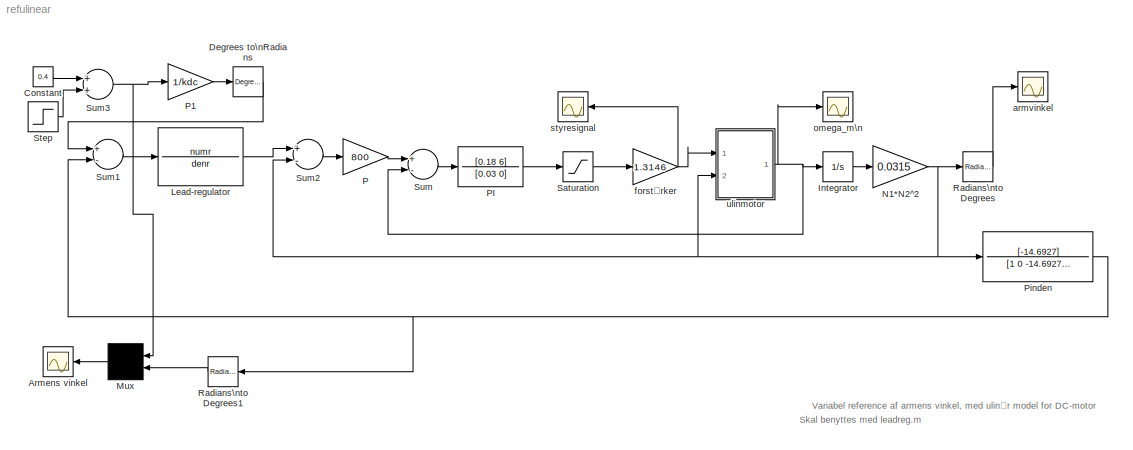
MODEL refulinear
KIND model
CONFIG AbsTol = 1e-6
CONFIG FixedStep = auto
CONFIG MaxStep = auto
CONFIG RelTol = 1e-3
CONFIG Solver = ode45
CONFIG StartTime = 0.0
CONFIG StopTime = 10
BLOCK [Scope] Armens vinkel
  Decimation = 1
  Floating = off
  Grid = on
  LimitMaxRows = on
  MaxRows = 5000
  Ports = [1, 0, 0, 0, 0]
  SampleInput = off
  SampleTime = 0
  SaveName = ScopeData
  SaveToWorkspace = off
  TickLabels = on
  TimeRange = 5
  YMax = 1
  YMin = -1
  ZoomMode = on
BLOCK [Constant] Constant
  Value = 0.4
BLOCK [Reference] Degrees to\nRadians  REF=simulink_extras/Transformations/Degrees to\nRadians
  Ports = [1, 1, 0, 0, 0]
  SourceBlock = simulink_extras/Transformations/Degrees to\nRadians
  SourceType = DegreesToRadians
BLOCK [Integrator] Integrator
  AbsoluteTolerance = auto
  ExternalReset = none
  InitialCondition = 0
  InitialConditionSource = internal
  LimitOutput = off
  LowerSaturationLimit = -inf
  Ports = [1, 1, 0, 0, 0]
  ShowSaturationPort = off
  ShowStatePort = off
  UpperSaturationLimit = inf
BLOCK [TransferFcn] Lead-regulator
  Denominator = denr
  Numerator = numr
BLOCK [Mux] Mux
  Inputs = 2
  Ports = [2, 1, 0, 0, 0]
BLOCK [Gain] N1*N2^2
  Gain = 0.0315
BLOCK [Gain] P
  Gain = 800
BLOCK [Gain] P1
  Gain = 1/kdc
BLOCK [TransferFcn] PI
  Denominator = [0.03 0]
  Numerator = [0.18 6]
BLOCK [TransferFcn] Pinden
  Denominator = [1 0 -14.6927 ]
  Numerator = [-14.6927]
BLOCK [Reference] Radians\nto Degrees  REF=simulink_extras/Transformations/Radians\nto Degrees
  Ports = [1, 1, 0, 0, 0]
  SourceBlock = simulink_extras/Transformations/Radians\nto Degrees
  SourceType = RadiansToDegrees
BLOCK [Reference] Radians\nto Degrees1  REF=simulink_extras/Transformations/Radians\nto Degrees
  Ports = [1, 1, 0, 0, 0]
  SourceBlock = simulink_extras/Transformations/Radians\nto Degrees
  SourceType = RadiansToDegrees
BLOCK [Saturate] Saturation
  LowerLimit = -5
  UpperLimit = 5
BLOCK [Step] Step
  After = -0.7
  Before = 0
  Time = 5
BLOCK [Sum] Sum
  Inputs = +-
  Ports = [2, 1, 0, 0, 0]
BLOCK [Sum] Sum1
  Inputs = +-
  Ports = [2, 1, 0, 0, 0]
BLOCK [Sum] Sum2
  Inputs = +-
  Ports = [2, 1, 0, 0, 0]
BLOCK [Sum] Sum3
  Inputs = ++
  Ports = [2, 1, 0, 0, 0]
BLOCK [Scope] armvinkel
  Decimation = 1
  Floating = off
  Grid = on
  LimitMaxRows = on
  MaxRows = 5000
  Ports = [1, 0, 0, 0, 0]
  SampleInput = off
  SampleTime = 0
  SaveName = ScopeData
  SaveToWorkspace = off
  TickLabels = on
  TimeRange = 10
  YMax = 0
  YMin = -0.00065
  ZoomMode = on
BLOCK [Gain] forstærker
  Gain = 1.3146
BLOCK [Scope] omega_m\n
  Decimation = 1
  Floating = off
  Grid = on
  LimitMaxRows = on
  MaxRows = 5000
  Ports = [1, 0, 0, 0, 0]
  SampleInput = off
  SampleTime = 0
  SaveName = ScopeData
  SaveToWorkspace = off
  TickLabels = on
  TimeRange = 10
  YMax = 0
  YMin = -0.00065
  ZoomMode = on
BLOCK [Scope] styresignal
  Decimation = 1
  Floating = off
  Grid = on
  LimitMaxRows = on
  MaxRows = 5000
  Ports = [1, 0, 0, 0, 0]
  SampleInput = off
  SampleTime = 0
  SaveName = ScopeData
  SaveToWorkspace = off
  TickLabels = on
  TimeRange = 0.5
  YMax = 13
  YMin = 0
  ZoomMode = on
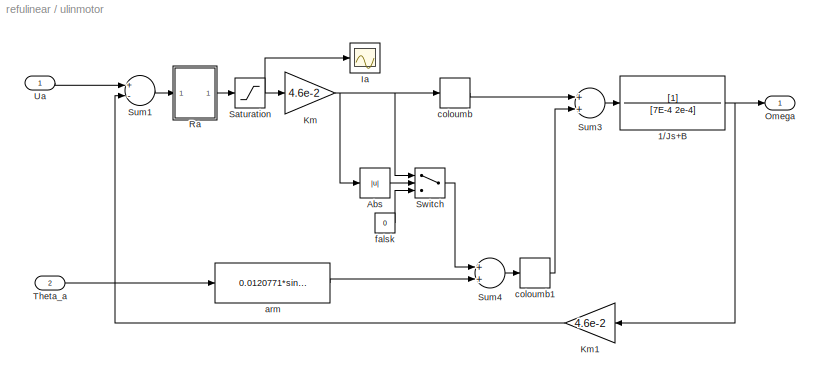
BLOCK [SubSystem] ulinmotor
  Ports = [2, 1, 0, 0, 0]
  ShowPortLabels = on
BLOCK [TransferFcn] ulinmotor/1//Js+B
  Denominator = [7E-4 2e-4]
  Numerator = [1]
BLOCK [Abs] ulinmotor/Abs
BLOCK [Scope] ulinmotor/Ia
  Decimation = 1
  Floating = off
  Grid = on
  LimitMaxRows = on
  MaxRows = 5000
  Ports = [1, 0, 0, 0, 0]
  SampleInput = off
  SampleTime = 0
  SaveName = ScopeData
  SaveToWorkspace = off
  TickLabels = on
  TimeRange = 5
  YMax = 3
  YMin = -3
  ZoomMode = on
BLOCK [Gain] ulinmotor/Km
  Gain = 4.6e-2
BLOCK [Gain] ulinmotor/Km1
  Gain = 4.6e-2
BLOCK [Outport] ulinmotor/Omega
  InitialOutput = 0
  OutputWhenDisabled = held
  Port = 1
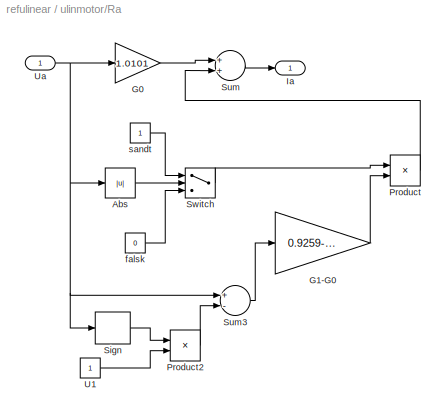
BLOCK [SubSystem] ulinmotor/Ra
  Ports = [1, 1, 0, 0, 0]
  ShowPortLabels = on
BLOCK [Abs] ulinmotor/Ra/Abs
BLOCK [Gain] ulinmotor/Ra/G0
  Gain = 1.0101
BLOCK [Gain] ulinmotor/Ra/G1-G0
  Gain = 0.9259-1.0101
BLOCK [Outport] ulinmotor/Ra/Ia
  InitialOutput = 0
  OutputWhenDisabled = held
  Port = 1
BLOCK [Product] ulinmotor/Ra/Product
  Inputs = 2
  Ports = [2, 1, 0, 0, 0]
BLOCK [Product] ulinmotor/Ra/Product2
  Inputs = 2
  Ports = [2, 1, 0, 0, 0]
BLOCK [Signum] ulinmotor/Ra/Sign
BLOCK [Sum] ulinmotor/Ra/Sum
  Inputs = ++
  Ports = [2, 1, 0, 0, 0]
BLOCK [Sum] ulinmotor/Ra/Sum3
  Inputs = +-
  Ports = [2, 1, 0, 0, 0]
BLOCK [Switch] ulinmotor/Ra/Switch
  Threshold = 1
BLOCK [Constant] ulinmotor/Ra/U1
  Value = 1
BLOCK [Inport] ulinmotor/Ra/Ua
  Port = 1
  PortWidth = -1
  SampleTime = -1
BLOCK [Constant] ulinmotor/Ra/falsk
  Value = 0
BLOCK [Constant] ulinmotor/Ra/sandt
  Value = 1
BLOCK [Saturate] ulinmotor/Saturation
  LowerLimit = -6.5
  UpperLimit = 6.5
BLOCK [Sum] ulinmotor/Sum1
  Inputs = +-
  Ports = [2, 1, 0, 0, 0]
BLOCK [Sum] ulinmotor/Sum3
  Inputs = ++
  Ports = [2, 1, 0, 0, 0]
BLOCK [Sum] ulinmotor/Sum4
  Inputs = ++
  Ports = [2, 1, 0, 0, 0]
BLOCK [Switch] ulinmotor/Switch
  Threshold = 0.09
BLOCK [Inport] ulinmotor/Theta_a
  Port = 2
  PortWidth = -1
  SampleTime = -1
BLOCK [Inport] ulinmotor/Ua
  Port = 1
  PortWidth = -1
  SampleTime = -1
BLOCK [Fcn] ulinmotor/arm
  Expr = 0.0120771*sin((u[1]))
BLOCK [DeadZone] ulinmotor/coloumb
  LowerValue = -0.09
  UpperValue = 0.09
BLOCK [DeadZone] ulinmotor/coloumb1
  LowerValue = -2.857
  UpperValue = 2.857
BLOCK [Constant] ulinmotor/falsk
  Value = 0
LINE Constant:1 -> Sum3:1
LINE Degrees to\nRadians:1 -> Sum1:1
LINE Integrator:1 -> N1*N2^2:1
LINE Lead-regulator:1 -> Sum2:1
LINE Mux:1 -> Armens vinkel:1
NET N1*N2^2:1 -> Pinden:1, Radians\nto Degrees:1, Sum2:2, ulinmotor:2
LINE P1:1 -> Degrees to\nRadians:1
LINE P:1 -> Sum:1
LINE PI:1 -> Saturation:1
NET Pinden:1 -> Radians\nto Degrees1:1, Sum1:2
LINE Radians\nto Degrees1:1 -> Mux:2
LINE Radians\nto Degrees:1 -> armvinkel:1
LINE Saturation:1 -> forstærker:1
LINE Step:1 -> Sum3:2
LINE Sum1:1 -> Lead-regulator:1
LINE Sum2:1 -> P:1
NET Sum3:1 -> Mux:1, P1:1
LINE Sum:1 -> PI:1
NET forstærker:1 -> styresignal:1, ulinmotor:1
NET ulinmotor/1//Js+B:1 -> ulinmotor/Km1:1, ulinmotor/Omega:1
LINE ulinmotor/Abs:1 -> ulinmotor/Switch:2
LINE ulinmotor/Km1:1 -> ulinmotor/Sum1:2
NET ulinmotor/Km:1 -> ulinmotor/Abs:1, ulinmotor/Switch:1, ulinmotor/coloumb:1
LINE ulinmotor/Ra/Abs:1 -> ulinmotor/Ra/Switch:2
LINE ulinmotor/Ra/G0:1 -> ulinmotor/Ra/Sum:1
LINE ulinmotor/Ra/G1-G0:1 -> ulinmotor/Ra/Product:2
LINE ulinmotor/Ra/Product2:1 -> ulinmotor/Ra/Sum3:2
LINE ulinmotor/Ra/Product:1 -> ulinmotor/Ra/Sum:2
LINE ulinmotor/Ra/Sign:1 -> ulinmotor/Ra/Product2:1
LINE ulinmotor/Ra/Sum3:1 -> ulinmotor/Ra/G1-G0:1
LINE ulinmotor/Ra/Sum:1 -> ulinmotor/Ra/Ia:1
LINE ulinmotor/Ra/Switch:1 -> ulinmotor/Ra/Product:1
LINE ulinmotor/Ra/U1:1 -> ulinmotor/Ra/Product2:2
NET ulinmotor/Ra/Ua:1 -> ulinmotor/Ra/Abs:1, ulinmotor/Ra/G0:1, ulinmotor/Ra/Sign:1, ulinmotor/Ra/Sum3:1
LINE ulinmotor/Ra/falsk:1 -> ulinmotor/Ra/Switch:3
LINE ulinmotor/Ra/sandt:1 -> ulinmotor/Ra/Switch:1
LINE ulinmotor/Ra:1 -> ulinmotor/Saturation:1
NET ulinmotor/Saturation:1 -> ulinmotor/Ia:1, ulinmotor/Km:1
LINE ulinmotor/Sum1:1 -> ulinmotor/Ra:1
LINE ulinmotor/Sum3:1 -> ulinmotor/1//Js+B:1
LINE ulinmotor/Sum4:1 -> ulinmotor/coloumb1:1
LINE ulinmotor/Switch:1 -> ulinmotor/Sum4:1
LINE ulinmotor/Theta_a:1 -> ulinmotor/arm:1
LINE ulinmotor/Ua:1 -> ulinmotor/Sum1:1
LINE ulinmotor/arm:1 -> ulinmotor/Sum4:2
LINE ulinmotor/coloumb1:1 -> ulinmotor/Sum3:2
LINE ulinmotor/coloumb:1 -> ulinmotor/Sum3:1
LINE ulinmotor/falsk:1 -> ulinmotor/Switch:3
NET ulinmotor:1 -> Integrator:1, Sum:2, omega_m\n:1
note: NET lines group one-source signal fan-out (src -> all destinations, sorted); 1:1 wires keep LINE
